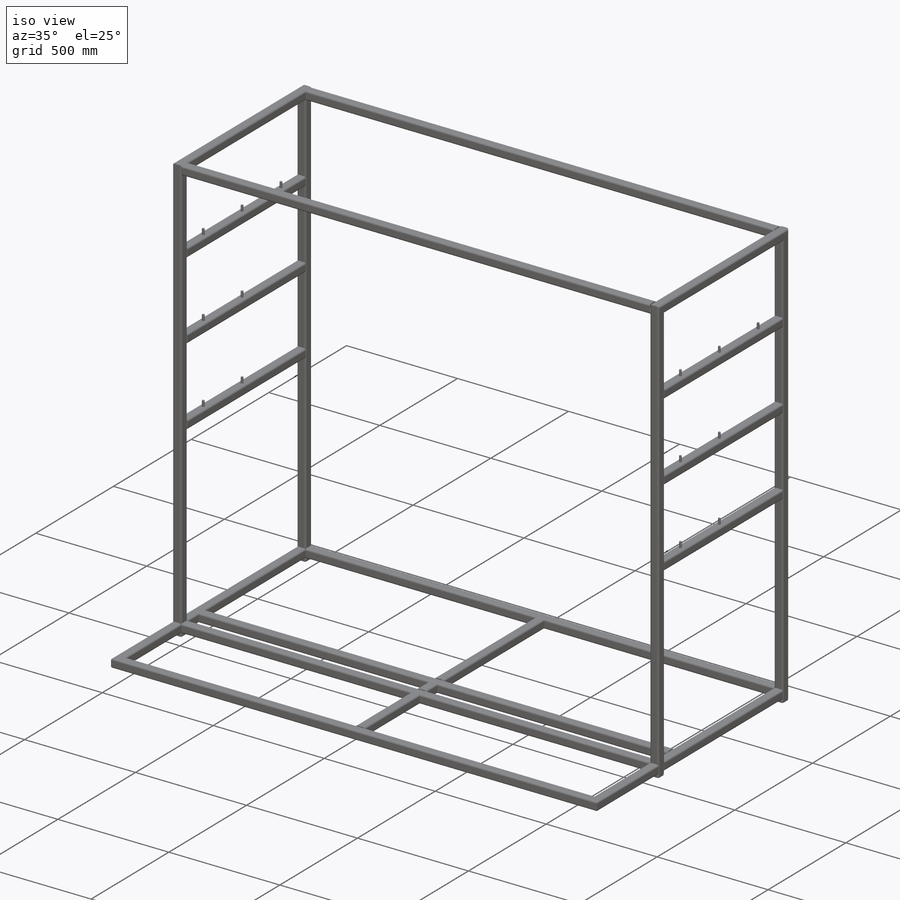
[diagram: iso view]
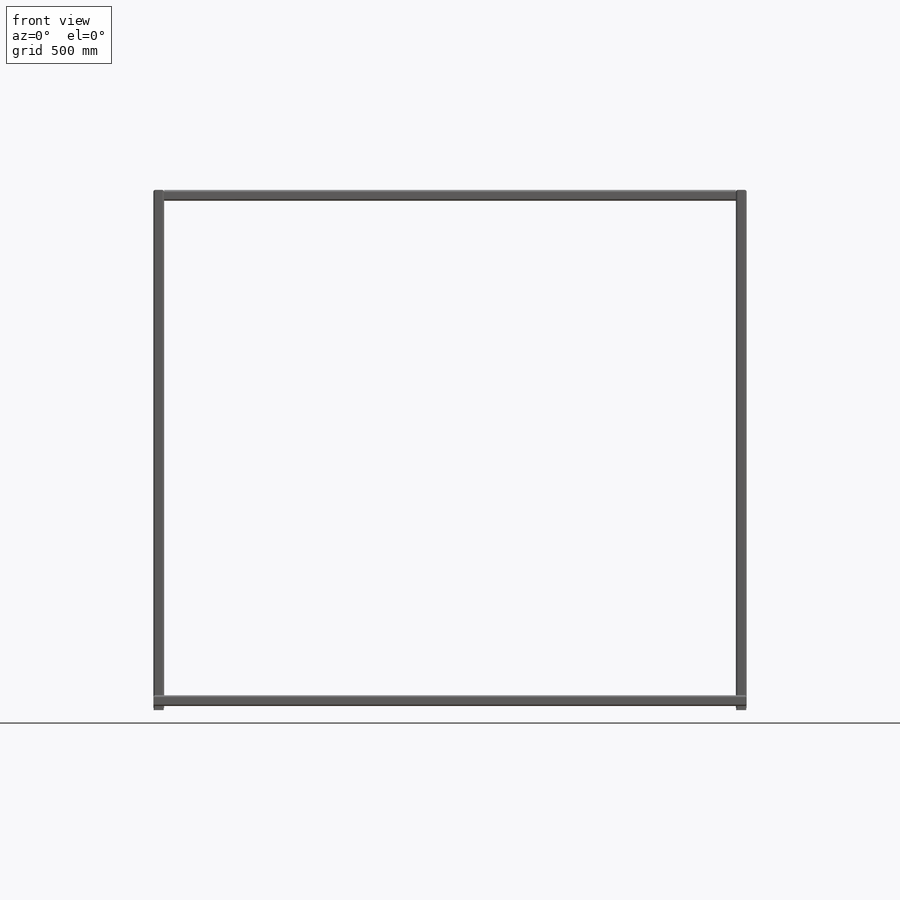
[diagram: front view]
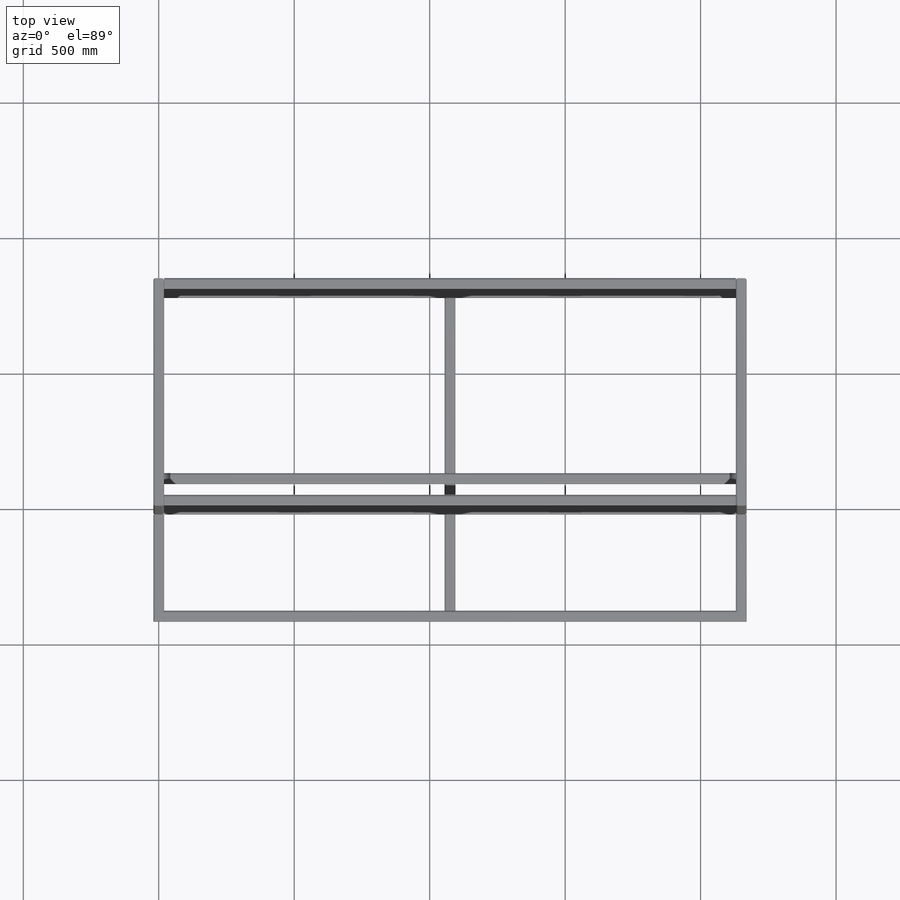
[diagram: top view]
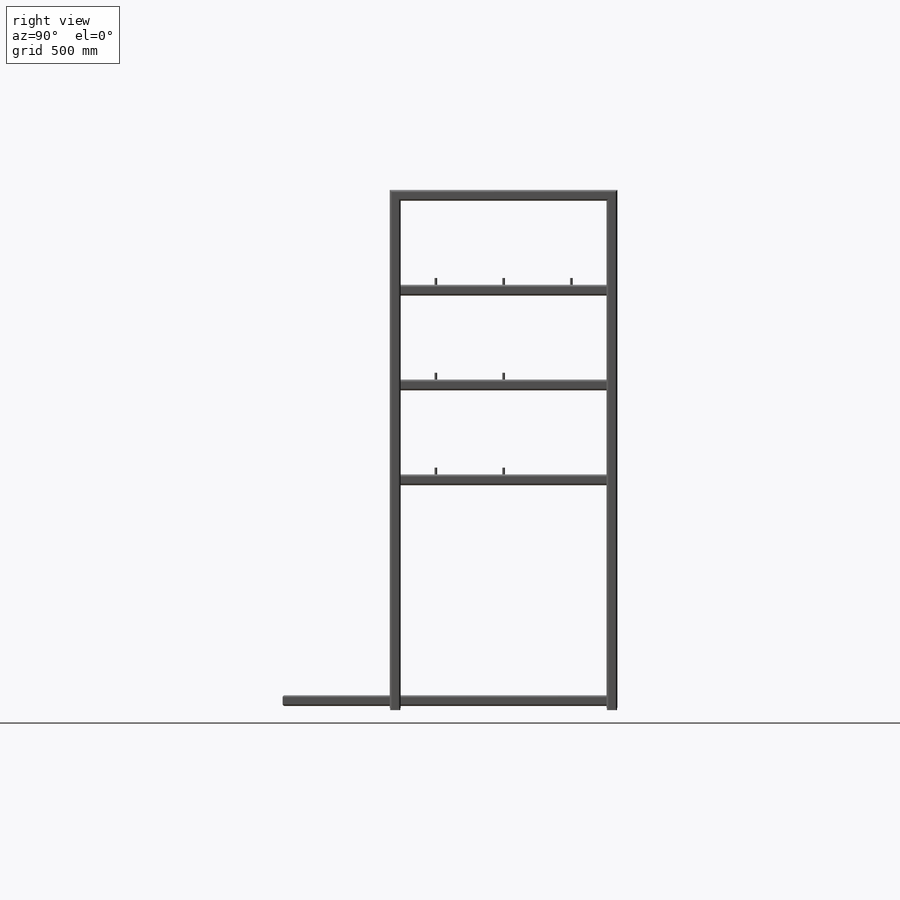
[diagram: right view]
SOLIDWORKS PART (.sldprt)
format: sldprt  version: not decoded by parser v0  size: 1,214,976 bytes
history: native  units: mm
features: plane x5, sketch x5, thread x4, material x1, hole x1 + 16 further entries (+15 scaffold rows collapsed)
feature tree (47):
  scaffold x15  (default folders/planes/origin — collapsed)
  material  "1.4301 (V2A/304L)"
  "Zuschnittslistenelement2"
  "Zuschnittslistenelement3"
  "Zuschnittslistenelement4"
  "Zuschnittslistenelement5"
  "Zuschnittslistenelement6"
  "Zuschnittslistenelement7"
  "Zuschnittslistenelement8"
  "Zuschnittslistenelement9"
  "Zuschnittslistenelement10"
  "Zuschnittslistenelement11"
  "Zuschnittslistenelement12"
  "Zuschnittslistenelement13"
  "Zuschnittslistenelement14"
  "Zuschnittslistenelement15"
  plane  "XY Vorne"
  plane  "XZ Oben"
  plane  "YZ Rechts"
  "Z"
  "Y"
  sketch  "3D-Skizze1"  dims[c1.D1=~92.033916mm c2.D1=~111.378624mm c3.D1=~94.027007mm c4.D1=~25.050024mm c5.D1=~10.826843mm c6.D1=~66.51528mm c7.D1=~64.131897mm c8.D1=~102.198978mm c9.D1=~86.885223mm c10.D1=~125.646019mm c11.D1=~101.973879mm c12.D1=~116.719572mm c13.D1=~109.051139mm c14.D1=~13.875692mm c15.D1=~64.817818mm c16.D1=~111.378624mm c17.D1=~64.390375mm c18.D1=~64.131897mm c19.D1=~172.802413mm c20.D1=~111.378624mm c21.D1=~64.131897mm c22.D1=~64.131897mm c23.D1=~64.131897mm c24.D1=~64.131897mm c25.D1=~64.131897mm c26.D1=~64.131897mm c27.D1=~64.131897mm c28.D1=2150.0mm c28.D2=800.0mm c28.D3=350.0mm c28.D4=350.0mm c28.D5=350.0mm c28.D6=~612.216921mm c28.D15=770.0mm c28.D7=1900.0mm c28.D8=~417.824409mm c29.D8=~436.440215mm c30.D8=~578.042468mm c31.D8=~415.734454mm c32.D8=~7.004089mm c33.D8=530.0mm c33.D9=530.0mm c33.D10=530.0mm c33.D11=~88.663242mm c34.D11=~71.915416mm c35.D11=~21.014028mm c36.D11=~83.336219mm c37.D11=150.0mm c37.D12=250.0mm c37.D13=250.0mm c37.D14=45.0mm c37.D15=~85.390011mm c38.D15=~66.033608mm c39.D15=~69.94409mm c40.D15=~82.806481mm c41.D15=~77.56941mm c42.D15=~84.356831mm c43.D15=~119.20203mm c44.D15=~203.839688mm c45.D15=~118.472303mm c46.D15=~89.802441mm c47.D15=~114.090755mm c48.D15=~149.820231mm c49.D15=~120.651525mm c50.D15=~145.326456mm c51.D15=~101.34092mm c52.D15=~138.819152mm c53.D15=~429.698114mm c53.D6=35.0mm c54.D15=2150.0mm c55.D15=~504.825421mm c56.D15=~364.580752mm c57.D15=~791.481829mm c58.D15=~1892.186272mm c59.D15=~188.003533mm c60.D15=2150.0mm c60.D16=2150.0mm c61.D15=~81.699863mm c61.D19=112.66mm c61.D16=~477.240752mm c62.D15=508.0mm c62.D17=~248.789301mm c63.D17=~79.201213mm c64.D17=~85.086321mm c65.D17=2150.0mm c66.D17=~1694.846306mm c67.D17=~931.500527mm c68.D17=~307.522975mm c69.D17=~401.975341mm c70.D17=~2444.072506mm c71.D17=~149.269514mm c72.D17=112.66mm c72.D18=508.0mm c72.D19=~372.97851mm c73.D19=~73.13483mm c74.D19=979.92mm c74.D20=~462.157005mm c75.D19=~105.866772mm c75.D15=~826.610618mm c76.D15=1195.34mm]
  plane  "Ebene1"
  sketch  "Sketch12"  dims[c1.D1=6.35mm c1.D2=6.35mm c1.D3=6.35mm c1.D4=6.35mm c1.D5=6.35mm c1.D6=6.35mm c1.D7=6.35mm c1.D8=6.35mm c2.D1=6.604mm c2.D2=6.604mm c2.D3=6.604mm c2.D4=6.604mm c3.D1=8.0mm c3.Thickness=3.0mm c3.D4=12.9032mm c3.D5=12.9286mm c3.V_leg=40.0mm c3.H_leg=20.0mm c4.D4=50.3428mm c4.D5=50.8508mm c5.D4=~41.274964mm c5.D5=~41.274964mm c5.D1=8.0mm c5.D2=3.0mm c5.D3=3.0mm]
  hole  "M16 Gewindebohrung1"  Diameter=14mm Depth=42mm
  sketch  "Skizze3"
  sketch  "Skizze2"  dims[hole-wizard template sketch: 46 standard entries collapsed; hole parameters kept: c15.Bohrerdurchmesser=14.0mm c15.Bohrungstiefe=42.0mm c15.D3=~14.816244mm c15.Spitzenwinkel=118.0deg]
  thread  "Bohrungsgewinde1"  Diameter=8mm  [1 undecoded]
  thread  "Bohrungsgewinde2"  Diameter=8mm  [1 undecoded]
  thread  "Bohrungsgewinde3"  Diameter=8mm  [1 undecoded]
  thread  "Bohrungsgewinde4"  Diameter=8mm  [1 undecoded]
  plane  "Ebene2"
  sketch  "Sketch11"  dims[dia=10.0mm Out_dia=21.3mm]
decode coverage: 9 of 10 modeling features carry decoded parameters; 16 rows unclassified (native names shown)
note: ~ marks probable driven/reference dimensions
note: 4 parameter values undecoded
note: suppression state not decoded; provenance and decode notes live in map.json
